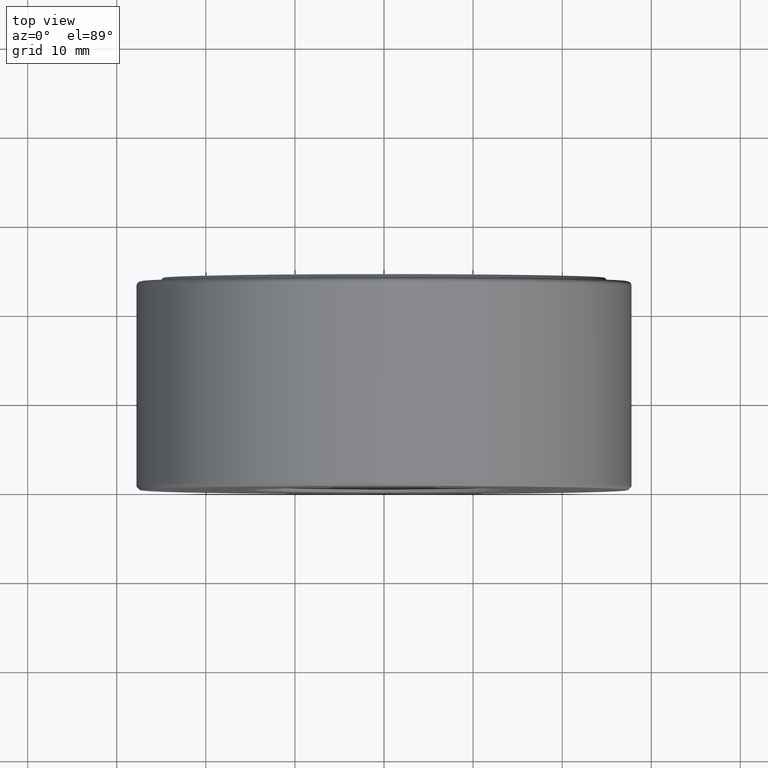
[diagram: clean part render]
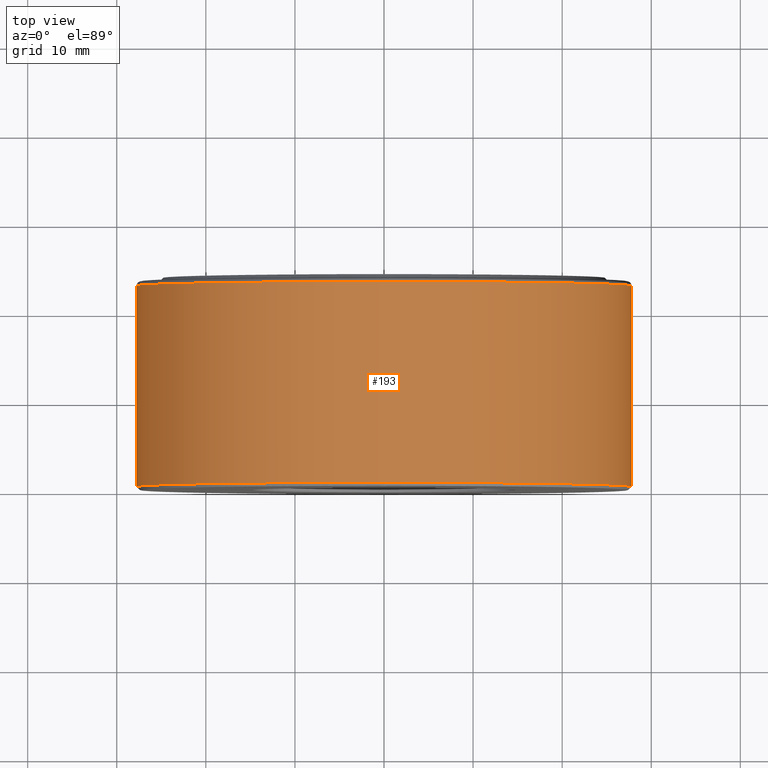
[diagram: same view with one face highlighted and labeled with its STEP entity id]
A machine part, top view. The second image highlights one B-rep face of the part: STEP entity #193.
In plain terms, the highlighted cylindrical surface (bore or boss wall) has radius 27.7812 mm, axis along (-0, 1, -0).
Its self-contained STEP definition (entity closure, byte-faithful):
#6 = CARTESIAN_POINT ( 'NONE',  ( 0.0000000000000000000, 0.9024999999999999700, 0.0000000000000000000 ) ) ;
#43 = DIRECTION ( 'NONE',  ( -0.0000000000000000000, 1.000000000000000000, -0.0000000000000000000 ) ) ;
#53 = DIRECTION ( 'NONE',  ( 0.0000000000000000000, 0.0000000000000000000, 1.000000000000000000 ) ) ;
#83 = EDGE_CURVE ( 'NONE', #314, #314, #389, .T. ) ;
#85 = ORIENTED_EDGE ( 'NONE', *, *, #210, .F. ) ;
#97 = CYLINDRICAL_SURFACE ( 'NONE', #541, 1.093750000000000000 ) ;
#102 = CARTESIAN_POINT ( 'NONE',  ( 0.0000000000000000000, 0.0000000000000000000, 0.0000000000000000000 ) ) ;
#132 = AXIS2_PLACEMENT_3D ( 'NONE', #6, #424, #324 ) ;
#193 = ADVANCED_FACE ( 'NONE', ( #316, #332 ), #97, .T. ) ;
#196 = EDGE_LOOP ( 'NONE', ( #463 ) ) ;
#210 = EDGE_CURVE ( 'NONE', #430, #430, #558, .T. ) ;
#257 = CARTESIAN_POINT ( 'NONE',  ( 0.0000000000000000000, 0.9024999999999999700, 1.093750000000000000 ) ) ;
#298 = AXIS2_PLACEMENT_3D ( 'NONE', #400, #43, #461 ) ;
#314 = VERTEX_POINT ( 'NONE', #388 ) ;
#316 = FACE_OUTER_BOUND ( 'NONE', #454, .T. ) ;
#324 = DIRECTION ( 'NONE',  ( 0.0000000000000000000, 0.0000000000000000000, 1.000000000000000000 ) ) ;
#332 = FACE_OUTER_BOUND ( 'NONE', #196, .T. ) ;
#388 = CARTESIAN_POINT ( 'NONE',  ( 0.0000000000000000000, 0.01500000000000004500, 1.093750000000000000 ) ) ;
#389 = CIRCLE ( 'NONE', #298, 1.093750000000000000 ) ;
#400 = CARTESIAN_POINT ( 'NONE',  ( 0.0000000000000000000, 0.01500000000000004500, 0.0000000000000000000 ) ) ;
#424 = DIRECTION ( 'NONE',  ( -0.0000000000000000000, 1.000000000000000000, -0.0000000000000000000 ) ) ;
#430 = VERTEX_POINT ( 'NONE', #257 ) ;
#454 = EDGE_LOOP ( 'NONE', ( #85 ) ) ;
#461 = DIRECTION ( 'NONE',  ( 0.0000000000000000000, 0.0000000000000000000, 1.000000000000000000 ) ) ;
#463 = ORIENTED_EDGE ( 'NONE', *, *, #83, .T. ) ;
#518 = DIRECTION ( 'NONE',  ( -0.0000000000000000000, 1.000000000000000000, -0.0000000000000000000 ) ) ;
#541 = AXIS2_PLACEMENT_3D ( 'NONE', #102, #518, #53 ) ;
#558 = CIRCLE ( 'NONE', #132, 1.093750000000000000 ) ;